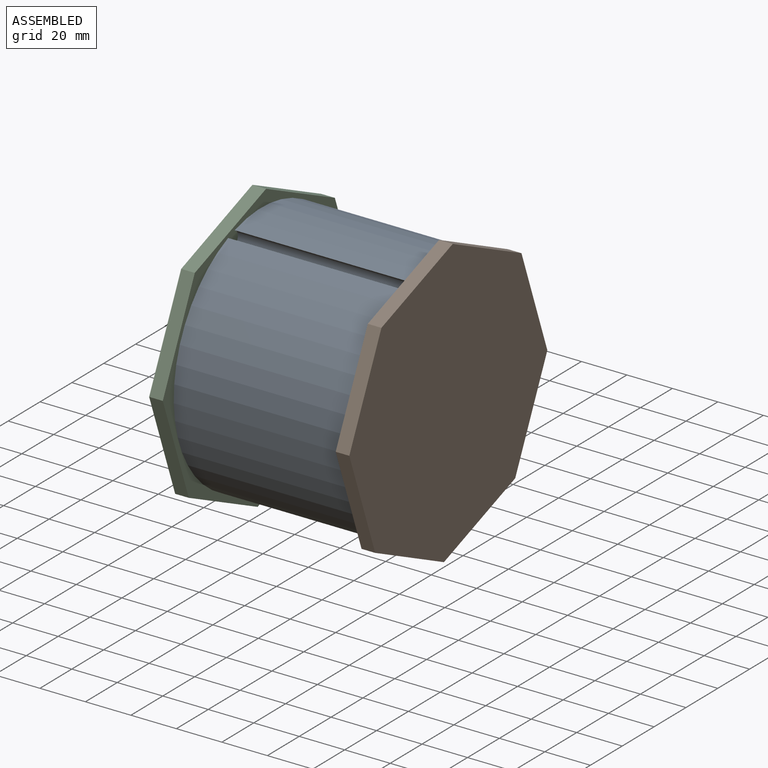
[diagram: assembled view]
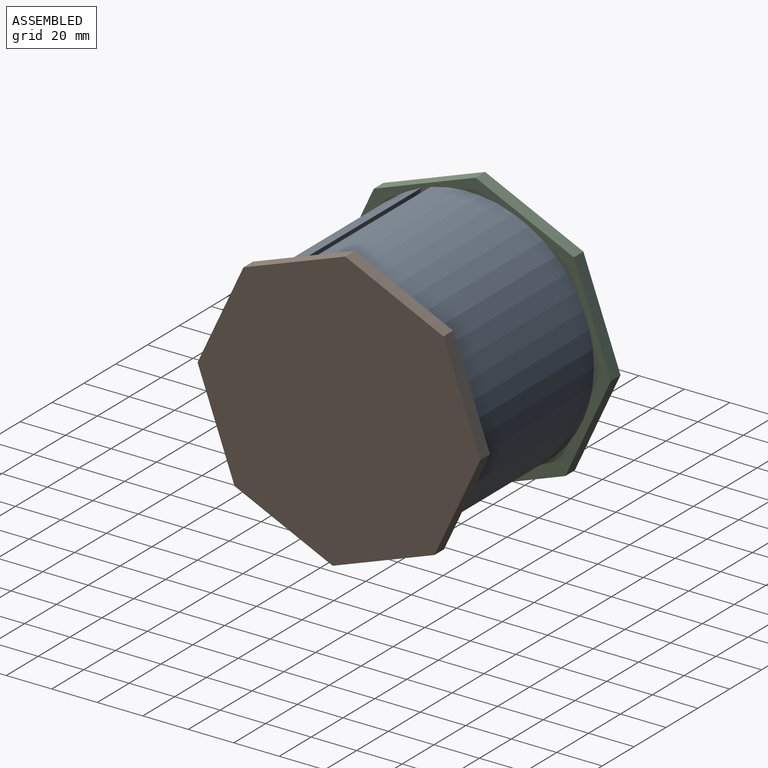
[diagram: assembled view, second angle]
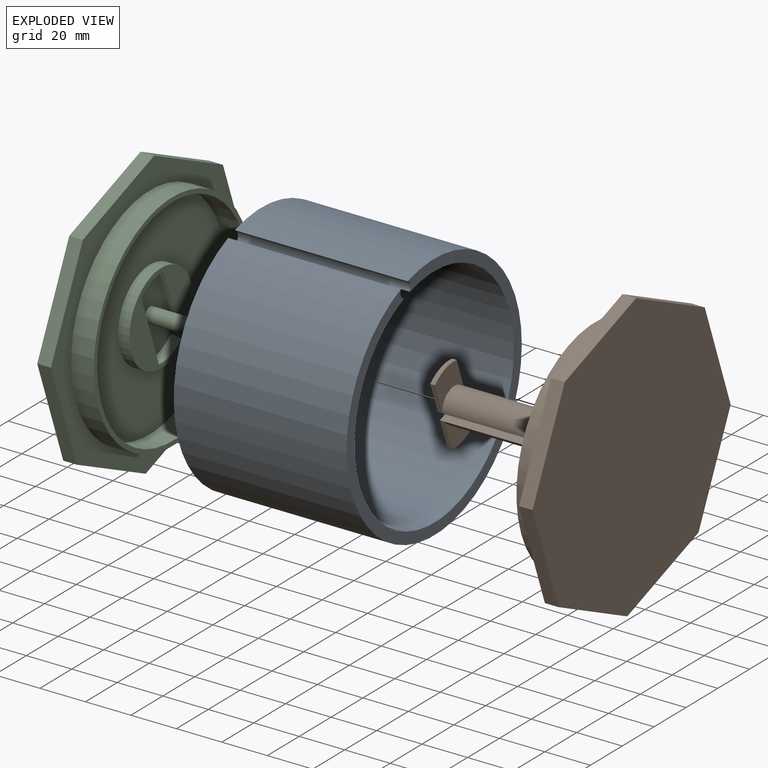
[diagram: exploded view]
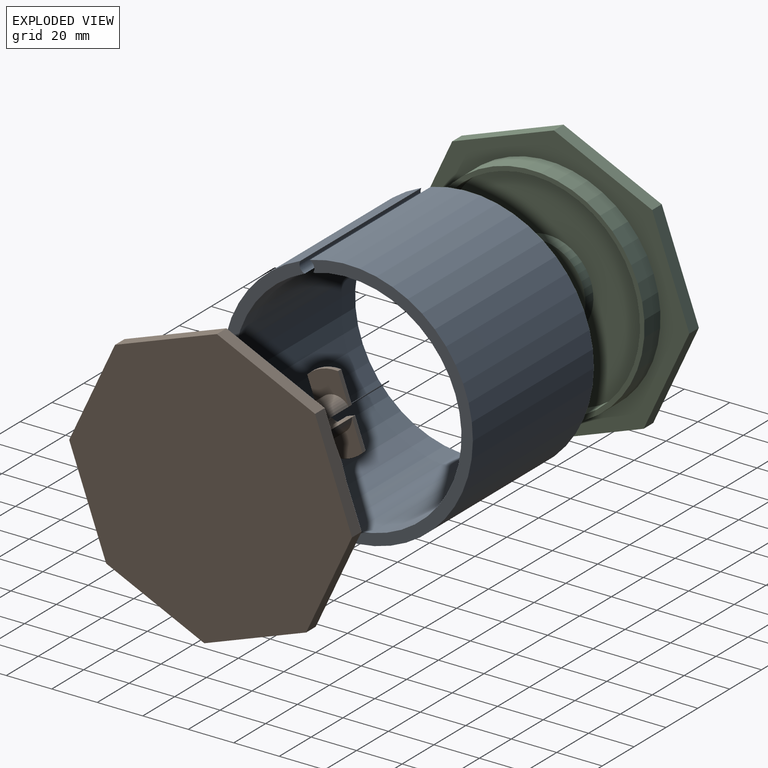
[diagram: exploded view, second angle]
ASSEMBLY  parts=3 mates=2
PART A: 6 faces, bbox 76x110x110 mm
  f0: cylinder r=55mm len=110mm, axis (-1,0,0), area 25929.3mm2, adj f1,f2,f4,f5
  f1: plane 110x109.96mm, normal (1,0,0), area 1620.4mm2, adj f0,f3,f4,f5
  f2: plane 110x109.96mm, normal (-1,0,0), area 1620.4mm2, adj f0,f3,f4,f5
  f3: cylinder r=50mm len=100mm, axis (-1,0,0), area 23579.9mm2, adj f1,f2,f4,f5
  f4: cylinder r=3.25mm len=76mm, axis (-1,0,0), area 433.6mm2, adj f0,f1,f2,f3
  f5: cylinder r=3.25mm len=76mm, axis (-1,0,0), area 433.6mm2, adj f0,f1,f2,f3
PART B: 32 faces, bbox 80x115x115 mm
  f0: plane 49.8x3.76mm, normal (0,0,1), area 187.5mm2, adj f3,f4,f25,f28,f31
  f1: plane 49.8x3.76mm, normal (0,0,-1), area 187.5mm2, adj f3,f4,f22,f23,f30
  f2: plane 95x95mm, normal (-1,0,0), area 6911.5mm2, adj f3,f7
  f3: cylinder r=7.5mm len=72mm, axis (1,0,0), area 3005.8mm2, adj f0,f1,f2,f4,f5,f6,f24,f29
  f4: plane 15x8mm, normal (-1,0,0), area 78.9mm2, adj f0,f1,f3,f5,f6,f30,f31
  f5: plane 49.8x3.76mm, normal (0,0,1), area 187.5mm2, adj f3,f4,f26,f28,f31
  f6: plane 49.8x3.76mm, normal (0,0,-1), area 187.5mm2, adj f3,f4,f20,f23,f30
  f7: cylinder r=47.5mm len=95mm, axis (1,0,0), area 2984.5mm2, adj f2,f9
  f8: cylinder r=49.5mm len=99mm, axis (1,0,0), area 3110.2mm2, adj f9,f19
  f9: plane 99x99mm, normal (-1,0,0), area 609.5mm2, adj f7,f8
  f10: plane 115.04x115.04mm, normal (1,0,0), area 10955.9mm2, adj f11,f12,f13,f14,f15,f16,f17,f18
  f11: plane 47.63x6mm, normal (0,1,0), area 285.8mm2, adj f10,f12,f18,f19
  f12: plane 33.71x33.65mm, normal (0,0.71,0.71), area 285.8mm2, adj f10,f11,f13,f19
  f13: plane 47.63x6mm, normal (0,0,1), area 285.8mm2, adj f10,f12,f14,f19
  f14: plane 33.71x33.65mm, normal (0,-0.71,0.71), area 285.8mm2, adj f10,f13,f15,f19
  f15: plane 47.63x6mm, normal (0,-1,0), area 285.8mm2, adj f10,f14,f16,f19
  f16: plane 33.71x33.65mm, normal (0,-0.71,-0.71), area 285.8mm2, adj f10,f15,f17,f19
  f17: plane 47.63x6mm, normal (0,0,-1), area 285.8mm2, adj f10,f16,f18,f19
  f18: plane 33.71x33.65mm, normal (0,0.71,-0.71), area 285.8mm2, adj f10,f11,f17,f19
  f19: plane 115.04x115.04mm, normal (-1,0,0), area 3258.3mm2, adj f8,f11,f12,f13,f14,f15,f16,f17
  f20: plane 13.79x2mm, normal (0,-1,0), area 27.6mm2, adj f6,f21,f23,f24
  f21: cylinder r=17.36mm len=14.46mm, axis (1,0,0), area 29.8mm2, adj f20,f22,f23,f24
  f22: plane 13.79x2mm, normal (0,1,0), area 27.6mm2, adj f1,f21,f23,f24
  f23: plane 15.36x14.46mm, normal (-1,0,0), area 204.8mm2, adj f1,f6,f20,f21,f22,f30
  f24: plane 15.36x14.46mm, normal (1,0,0), area 155.9mm2, adj f3,f20,f21,f22
  f25: plane 13.79x2mm, normal (0,-1,0), area 27.6mm2, adj f0,f27,f28,f29
  f26: plane 13.79x2mm, normal (0,1,0), area 27.6mm2, adj f5,f27,f28,f29
  f27: cylinder r=17.36mm len=14.46mm, axis (1,0,0), area 29.8mm2, adj f25,f26,f28,f29
  f28: plane 15.36x14.46mm, normal (-1,0,0), area 204.8mm2, adj f0,f5,f25,f26,f27,f31
  f29: plane 15.36x14.46mm, normal (1,0,0), area 155.9mm2, adj f3,f25,f26,f27
  f30: cylinder r=4mm len=49.8mm, axis (-1,0,0), area 417.2mm2, adj f1,f4,f6,f23
  f31: cylinder r=4mm len=49.8mm, axis (-1,0,0), area 417.2mm2, adj f0,f4,f5,f28
PART C: 30 faces, bbox 46x115x115 mm
  f0: plane 36x36mm, normal (-1,0,0), area 957.3mm2, adj f19,f20,f21,f22,f24,f25,f26,f27
  f1: plane 32.73x10.5mm, normal (1,0,0), area 229.2mm2, adj f20,f21,f27,f28,f29
  f2: plane 32.73x10.5mm, normal (1,0,0), area 237.3mm2, adj f19,f21,f24,f25,f26
  f3: plane 40x40mm, normal (-1,0,0), area 732.7mm2, adj f18,f19,f20,f21
  f4: plane 33.71x33.65mm, normal (0,0.71,-0.71), area 285.8mm2, adj f5,f11,f12,f13
  f5: plane 47.63x6mm, normal (0,1,0), area 285.8mm2, adj f4,f6,f12,f13
  f6: plane 33.71x33.65mm, normal (0,0.71,0.71), area 285.8mm2, adj f5,f7,f12,f13
  f7: plane 47.63x6mm, normal (0,0,1), area 285.8mm2, adj f6,f8,f12,f13
  f8: plane 33.71x33.65mm, normal (0,-0.71,0.71), area 285.8mm2, adj f7,f9,f12,f13
  f9: plane 47.63x6mm, normal (0,-1,0), area 285.8mm2, adj f8,f10,f12,f13
  f10: plane 33.71x33.65mm, normal (0,-0.71,-0.71), area 285.8mm2, adj f9,f11,f12,f13
  f11: plane 47.63x6mm, normal (0,0,-1), area 285.8mm2, adj f4,f10,f12,f13
  f12: plane 115.04x115.04mm, normal (1,0,0), area 10955.9mm2, adj f4,f5,f6,f7,f8,f9,f10,f11
  f13: plane 115.04x115.04mm, normal (-1,0,0), area 3258.3mm2, adj f4,f5,f6,f7,f8,f9,f10,f11
  f14: cylinder r=47.5mm len=95mm, axis (1,0,0), area 2984.5mm2, adj f16,f17
  f15: cylinder r=49.5mm len=99mm, axis (1,0,0), area 3110.2mm2, adj f13,f16
  f16: plane 99x99mm, normal (-1,0,0), area 609.5mm2, adj f14,f15
  f17: plane 95x95mm, normal (-1,0,0), area 5831.6mm2, adj f14,f18
  f18: cylinder r=20mm len=40mm, axis (1,0,0), area 628.3mm2, adj f3,f17
  f19: plane 32.73x5mm, normal (0,-1,0), area 92.5mm2, adj f0,f2,f3,f21,f25,f26
  f20: plane 32.73x5mm, normal (0,1,0), area 88.4mm2, adj f0,f1,f3,f21,f27,f29
  f21: cylinder r=18mm len=36mm, axis (1,0,0), area 401.2mm2, adj f0,f1,f2,f3,f19,f20
  f22: cylinder r=3.25mm len=40mm, axis (1,0,0), area 816.8mm2, adj f0,f23
  f23: plane 6.5x6.5mm, normal (-1,0,0), area 33.2mm2, adj f22
  f24: plane 9.02x3mm, normal (0,1,0), area 27.1mm2, adj f0,f2,f25,f26
  f25: plane 3x1.07mm, normal (0,0,1), area 3.2mm2, adj f0,f2,f19,f24
  f26: plane 3x1.07mm, normal (0,0,-1), area 3.2mm2, adj f0,f2,f19,f24
  f27: plane 3x2.32mm, normal (0,0,-1), area 7mm2, adj f0,f1,f20,f28
  f28: plane 7.66x3mm, normal (0,-1,0), area 23mm2, adj f0,f1,f27,f29
  f29: plane 3x2.32mm, normal (0,0,1), area 7mm2, adj f0,f1,f20,f28
PLACE A rot(axis=(1,0,0),20deg) t=(-160.81,-71.25,32.82)mm
PLACE B rot(axis=(1,0,0),20deg) t=(-84.81,-70.93,31.94)mm
PLACE C rot(axis=(0,-0.98,-0.17),180deg) t=(-160.81,-70.93,31.94)mm
MATE fastened B.f8 <-> A.f1  axis (-1,0,0) through (-84.81,-70.93,31.94)mm
MATE fastened C.f15 <-> A.f2  axis (1,0,0) through (-160.81,-70.93,31.94)mm
